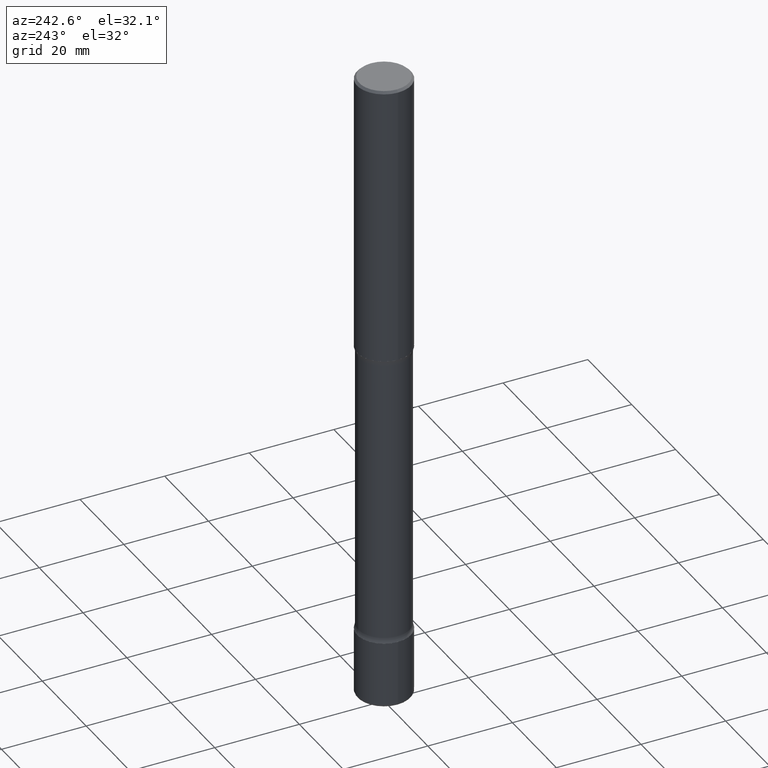
[diagram: clean part render]
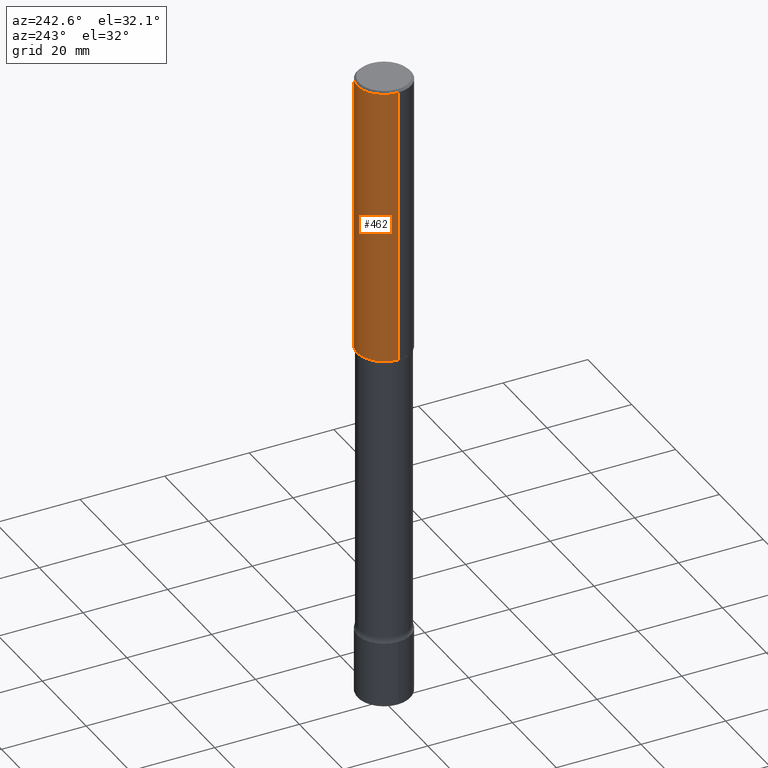
[diagram: same view with one face highlighted and labeled with its STEP entity id]
A machine part, auxiliary view. The second image highlights one B-rep face of the part: STEP entity #462.
In plain terms, the highlighted cylindrical surface (edge-blend (fillet) strip) has radius 6.35 mm, axis along (-0, 0, 1).
Its self-contained STEP definition (entity closure, byte-faithful):
#4 = CARTESIAN_POINT ( 'NONE',  ( -0.2500000000000001110, 1.675911042644704760E-15, -0.02000000000000000042 ) ) ;
#13 = VERTEX_POINT ( 'NONE', #4 ) ;
#20 = DIRECTION ( 'NONE',  ( -2.445468806185136597E-29, 3.491481338843145583E-15, 1.000000000000000000 ) ) ;
#24 = CYLINDRICAL_SURFACE ( 'NONE', #426, 0.2500000000000002220 ) ;
#29 = AXIS2_PLACEMENT_3D ( 'NONE', #253, #31, #211 ) ;
#31 = DIRECTION ( 'NONE',  ( -2.445468806185136597E-29, 3.491481338843145583E-15, 1.000000000000000000 ) ) ;
#47 = VERTEX_POINT ( 'NONE', #191 ) ;
#50 = ORIENTED_EDGE ( 'NONE', *, *, #177, .T. ) ;
#73 = DIRECTION ( 'NONE',  ( -2.445468806185136877E-29, 3.491481338843145188E-15, 1.000000000000000000 ) ) ;
#87 = CARTESIAN_POINT ( 'NONE',  ( -0.2500000000000002220, 1.776356839400252042E-15, -1.229733772563727566E-29 ) ) ;
#100 = EDGE_CURVE ( 'NONE', #229, #13, #478, .T. ) ;
#121 = LINE ( 'NONE', #87, #167 ) ;
#139 = VERTEX_POINT ( 'NONE', #467 ) ;
#167 = VECTOR ( 'NONE', #258, 39.37007874015748143 ) ;
#177 = EDGE_CURVE ( 'NONE', #139, #13, #121, .T. ) ;
#191 = CARTESIAN_POINT ( 'NONE',  ( 0.2500000000000003331, -1.091087918388482802E-14, -2.625000000000000444 ) ) ;
#195 = VECTOR ( 'NONE', #73, 39.37007874015748143 ) ;
#211 = DIRECTION ( 'NONE',  ( 1.000000000000000000, -6.982962677686267499E-15, 0.000000000000000000 ) ) ;
#212 = FACE_OUTER_BOUND ( 'NONE', #473, .T. ) ;
#229 = VERTEX_POINT ( 'NONE', #274 ) ;
#253 = CARTESIAN_POINT ( 'NONE',  ( 4.890937612370273159E-31, -6.982962677686291609E-17, -0.02000000000000000042 ) ) ;
#258 = DIRECTION ( 'NONE',  ( -2.445468806185136877E-29, 3.491481338843145188E-15, 1.000000000000000000 ) ) ;
#274 = CARTESIAN_POINT ( 'NONE',  ( 0.2500000000000001110, -1.784954126219746583E-15, -0.02000000000000000042 ) ) ;
#304 = ORIENTED_EDGE ( 'NONE', *, *, #417, .T. ) ;
#317 = ORIENTED_EDGE ( 'NONE', *, *, #100, .F. ) ;
#326 = CARTESIAN_POINT ( 'NONE',  ( 0.000000000000000000, 0.000000000000000000, 0.000000000000000000 ) ) ;
#337 = CIRCLE ( 'NONE', #338, 0.2500000000000003331 ) ;
#338 = AXIS2_PLACEMENT_3D ( 'NONE', #412, #508, #372 ) ;
#345 = LINE ( 'NONE', #502, #195 ) ;
#346 = EDGE_CURVE ( 'NONE', #47, #229, #345, .T. ) ;
#372 = DIRECTION ( 'NONE',  ( 1.000000000000000000, -6.982962677686269077E-15, 0.000000000000000000 ) ) ;
#412 = CARTESIAN_POINT ( 'NONE',  ( 6.419355616235984688E-29, -9.165138514463258190E-15, -2.625000000000000444 ) ) ;
#417 = EDGE_CURVE ( 'NONE', #47, #139, #337, .T. ) ;
#426 = AXIS2_PLACEMENT_3D ( 'NONE', #326, #20, #551 ) ;
#451 = ORIENTED_EDGE ( 'NONE', *, *, #346, .F. ) ;
#462 = ADVANCED_FACE ( 'NONE', ( #212 ), #24, .T. ) ;
#467 = CARTESIAN_POINT ( 'NONE',  ( -0.2500000000000003331, -2.841127231219806335E-15, -2.625000000000000444 ) ) ;
#473 = EDGE_LOOP ( 'NONE', ( #304, #50, #317, #451 ) ) ;
#478 = CIRCLE ( 'NONE', #29, 0.2500000000000001110 ) ;
#502 = CARTESIAN_POINT ( 'NONE',  ( 0.2500000000000002220, -1.745740669421568453E-15, 1.219044193948985209E-29 ) ) ;
#508 = DIRECTION ( 'NONE',  ( -2.445468806185136597E-29, 3.491481338843145583E-15, 1.000000000000000000 ) ) ;
#551 = DIRECTION ( 'NONE',  ( 1.000000000000000000, -6.982962677686267499E-15, 4.876176775795936353E-29 ) ) ;